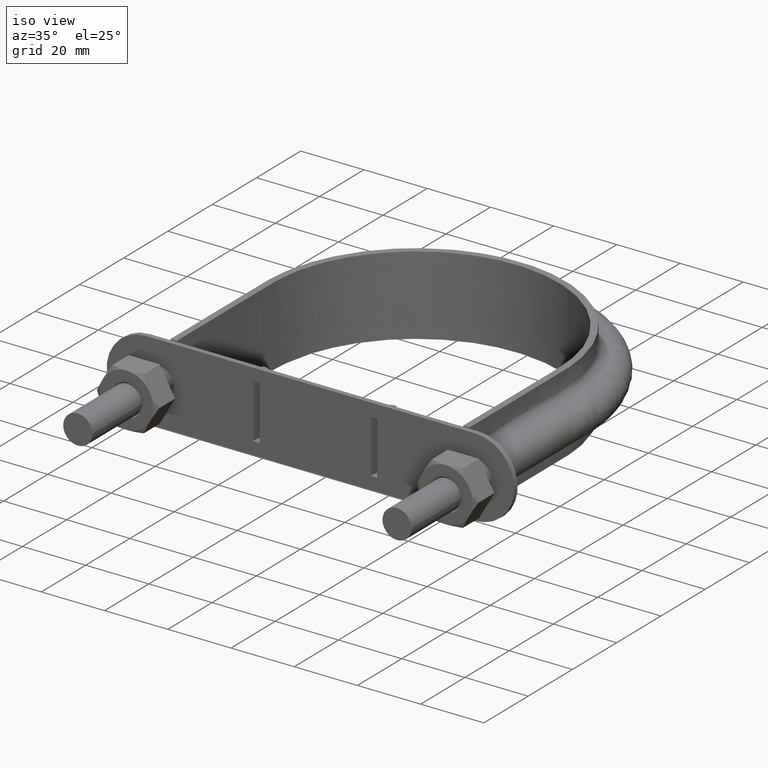
[diagram: clean part render]
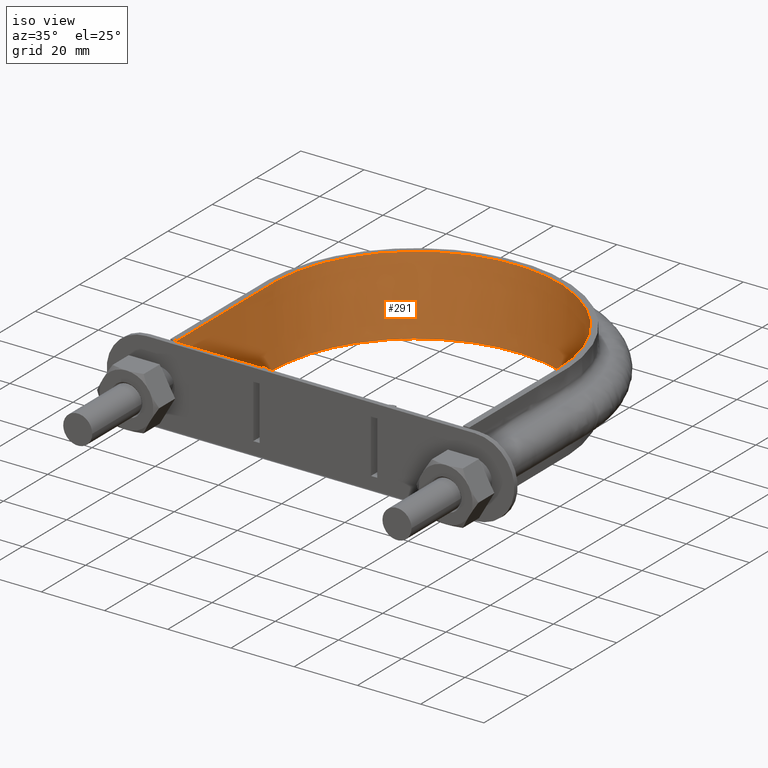
[diagram: same view with one face highlighted and labeled with its STEP entity id]
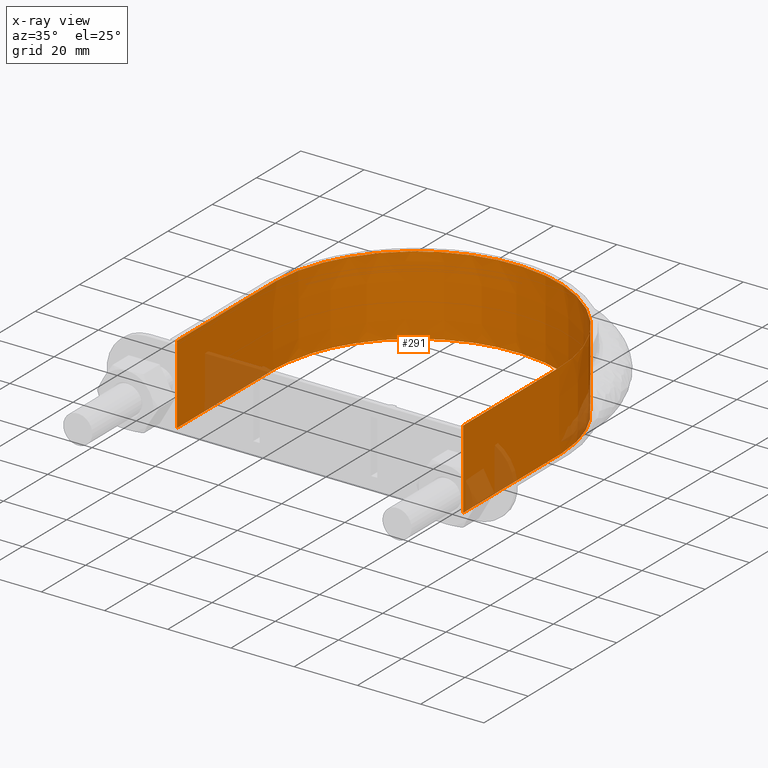
[diagram: x-ray of the same camera — body ghosted, the highlighted face saturated]
A machine part, iso view. The second image highlights one B-rep face of the part: STEP entity #291.
The next image is the same camera in x-ray: the body ghosted, the highlighted face saturated — about 9% of this face is hidden behind the body in this view.
In plain terms, the highlighted face is a SurfaceOfExtrusion surface.
Its self-contained STEP definition (entity closure, byte-faithful):
#291 = ADVANCED_FACE( '', ( #435 ), #436, .T. );
#435 = FACE_OUTER_BOUND( '', #847, .T. );
#436 = SURFACE_OF_LINEAR_EXTRUSION( '', #848, #849 );
#847 = EDGE_LOOP( '', ( #1841, #1842, #1843, #1844 ) );
#848 = B_SPLINE_CURVE_WITH_KNOTS( '', 3, ( #1845, #1846, #1847, #1848, #1849, #1850, #1851, #1852, #1853, #1854, #1855, #1856, #1857, #1858, #1859, #1860 ), .UNSPECIFIED., .F., .F., ( 4, 3, 1, 1, 1, 1, 1, 1, 3, 4 ), ( -8.93133047210300, -8.00000000000000, -7.00000000000000, -6.00000000000000, -5.00000000000000, -4.00000000000000, -3.00000000000000, -2.00000000000000, -1.00000000000000, -0.0686695278969956 ), .UNSPECIFIED. );
#849 = VECTOR( '', #1861, 1000.00000000000 );
#1841 = ORIENTED_EDGE( '', *, *, #2539, .T. );
#1842 = ORIENTED_EDGE( '', *, *, #2544, .T. );
#1843 = ORIENTED_EDGE( '', *, *, #2545, .F. );
#1844 = ORIENTED_EDGE( '', *, *, #2546, .T. );
#1845 = CARTESIAN_POINT( '', ( 45.3000000000000, 37.3000000000000, 12.5000100000910 ) );
#1846 = CARTESIAN_POINT( '', ( 45.3000000000000, 51.7666666666667, 12.5000100000910 ) );
#1847 = CARTESIAN_POINT( '', ( 45.3000000000000, 66.2333333333333, 12.5000100000910 ) );
#1848 = CARTESIAN_POINT( '', ( 45.3000000000000, 80.7000000000000, 12.5000100000910 ) );
#1849 = CARTESIAN_POINT( '', ( 45.3000000000000, 87.4617942068644, 12.5000100000910 ) );
#1850 = CARTESIAN_POINT( '', ( 42.2071641315033, 101.032157601825, 12.5000100000910 ) );
#1851 = CARTESIAN_POINT( '', ( 29.2082638356160, 117.324357375469, 12.5000100000910 ) );
#1852 = CARTESIAN_POINT( '', ( 10.4243086712368, 126.372209831110, 12.5000100000910 ) );
#1853 = CARTESIAN_POINT( '', ( -10.4243086712368, 126.372209831110, 12.5000100000910 ) );
#1854 = CARTESIAN_POINT( '', ( -29.2082638356159, 117.324357375469, 12.5000100000910 ) );
#1855 = CARTESIAN_POINT( '', ( -42.2071641315033, 101.032157601825, 12.5000100000910 ) );
#1856 = CARTESIAN_POINT( '', ( -45.3000000000000, 87.4617942068644, 12.5000100000910 ) );
#1857 = CARTESIAN_POINT( '', ( -45.3000000000000, 80.7000000000000, 12.5000100000910 ) );
#1858 = CARTESIAN_POINT( '', ( -45.3000000000000, 66.2333333333333, 12.5000100000910 ) );
#1859 = CARTESIAN_POINT( '', ( -45.3000000000000, 51.7666666666667, 12.5000100000910 ) );
#1860 = CARTESIAN_POINT( '', ( -45.3000000000000, 37.3000000000000, 12.5000100000910 ) );
#1861 = DIRECTION( '', ( 0.000000000000000, 0.000000000000000, -1.00000000000000 ) );
#2539 = EDGE_CURVE( '', #2793, #2794, #2795, .T. );
#2544 = EDGE_CURVE( '', #2794, #2803, #2804, .F. );
#2545 = EDGE_CURVE( '', #2805, #2803, #2806, .T. );
#2546 = EDGE_CURVE( '', #2805, #2793, #2807, .T. );
#2793 = VERTEX_POINT( '', #3223 );
#2794 = VERTEX_POINT( '', #3224 );
#2795 = LINE( '', #3225, #3226 );
#2803 = VERTEX_POINT( '', #3275 );
#2804 = B_SPLINE_CURVE_WITH_KNOTS( '', 3, ( #3276, #3277, #3278, #3279, #3280, #3281, #3282, #3283, #3284, #3285, #3286, #3287, #3288, #3289, #3290, #3291 ), .UNSPECIFIED., .F., .F., ( 4, 3, 1, 1, 1, 1, 1, 1, 3, 4 ), ( -8.93133047210300, -8.00000000000000, -7.00000000000000, -6.00000000000000, -5.00000000000000, -4.00000000000000, -3.00000000000000, -2.00000000000000, -1.00000000000000, -0.0686695278969956 ), .UNSPECIFIED. );
#2805 = VERTEX_POINT( '', #3292 );
#2806 = LINE( '', #3293, #3294 );
#2807 = B_SPLINE_CURVE_WITH_KNOTS( '', 3, ( #3295, #3296, #3297, #3298, #3299, #3300, #3301, #3302, #3303, #3304, #3305, #3306, #3307, #3308, #3309, #3310, #3311, #3312, #3313, #3314, #3315, #3316, #3317, #3318, #3319, #3320, #3321, #3322, #3323, #3324, #3325, #3326, #3327, #3328, #3329, #3330, #3331, #3332, #3333, #3334, #3335, #3336, #3337, #3338, #3339, #3340, #3341, #3342, #3343, #3344, #3345, #3346, #3347, #3348, #3349, #3350, #3351, #3352, #3353, #3354, #3355, #3356, #3357, #3358, #3359, #3360, #3361, #3362, #3363, #3364, #3365, #3366, #3367, #3368, #3369, #3370, #3371, #3372, #3373, #3374, #3375, #3376, #3377, #3378 ), .UNSPECIFIED., .F., .F., ( 4, 1, 2, 2, 2, 2, 2, 2, 2, 2, 2, 2, 2, 2, 2, 2, 2, 2, 2, 2, 2, 2, 2, 2, 2, 2, 2, 2, 2, 2, 2, 2, 2, 2, 2, 2, 2, 2, 2, 2, 2, 1, 4 ), ( 0.000000000000000, 0.0287543779946544, 0.0431315669919816, 0.0440301413043146, 0.0449287156166476, 0.0467258642413135, 0.0503201614906453, 0.0575087559893089, 0.0611030532386408, 0.0629002018633067, 0.0646973504879726, 0.0718859449866363, 0.0754802422359682, 0.0790745394853000, 0.0862631339839637, 0.0898574312332955, 0.0916545798579614, 0.0934517284826273, 0.100640322981291, 0.107828917479955, 0.111423214729286, 0.115017511978618, 0.122206106477282, 0.124003255101948, 0.125800403726614, 0.129394700975946, 0.136583295474609, 0.138380444099275, 0.140177592723941, 0.143771889973273, 0.150960484471937, 0.154554781721269, 0.158149078970600, 0.165337673469264, 0.168931970718596, 0.170729119343262, 0.172526267967928, 0.179714862466592, 0.183309159715923, 0.185106308340589, 0.186903456965255, 0.201280645962582, 0.230035023957236 ), .UNSPECIFIED. );
#3223 = CARTESIAN_POINT( '', ( -45.3000000000000, 37.3000000000000, 12.5000000000000 ) );
#3224 = CARTESIAN_POINT( '', ( -45.3000000000000, 37.3000000000000, -12.5000000000000 ) );
#3225 = CARTESIAN_POINT( '', ( -45.3000000000000, 37.3000000000000, 12.5000100000910 ) );
#3226 = VECTOR( '', #4055, 1000.00000000000 );
#3275 = CARTESIAN_POINT( '', ( 45.3000000000000, 37.3000000000000, -12.5000000000000 ) );
#3276 = CARTESIAN_POINT( '', ( 45.3000000000000, 37.3000000000000, -12.5000000000000 ) );
#3277 = CARTESIAN_POINT( '', ( 45.3000000000000, 51.7666666666667, -12.5000000000000 ) );
#3278 = CARTESIAN_POINT( '', ( 45.3000000000000, 66.2333333333333, -12.5000000000000 ) );
#3279 = CARTESIAN_POINT( '', ( 45.3000000000000, 80.7000000000000, -12.5000000000000 ) );
#3280 = CARTESIAN_POINT( '', ( 45.3000000000000, 87.4617942068644, -12.5000000000000 ) );
#3281 = CARTESIAN_POINT( '', ( 42.2071641315033, 101.032157601825, -12.5000000000000 ) );
#3282 = CARTESIAN_POINT( '', ( 29.2082638356160, 117.324357375469, -12.5000000000000 ) );
#3283 = CARTESIAN_POINT( '', ( 10.4243086712368, 126.372209831110, -12.5000000000000 ) );
#3284 = CARTESIAN_POINT( '', ( -10.4243086712368, 126.372209831110, -12.5000000000000 ) );
#3285 = CARTESIAN_POINT( '', ( -29.2082638356159, 117.324357375469, -12.5000000000000 ) );
#3286 = CARTESIAN_POINT( '', ( -42.2071641315033, 101.032157601825, -12.5000000000000 ) );
#3287 = CARTESIAN_POINT( '', ( -45.3000000000000, 87.4617942068644, -12.5000000000000 ) );
#3288 = CARTESIAN_POINT( '', ( -45.3000000000000, 80.7000000000000, -12.5000000000000 ) );
#3289 = CARTESIAN_POINT( '', ( -45.3000000000000, 66.2333333333333, -12.5000000000000 ) );
#3290 = CARTESIAN_POINT( '', ( -45.3000000000000, 51.7666666666667, -12.5000000000000 ) );
#3291 = CARTESIAN_POINT( '', ( -45.3000000000000, 37.3000000000000, -12.5000000000000 ) );
#3292 = CARTESIAN_POINT( '', ( 45.3000000000000, 37.3000000000000, 12.5000000000000 ) );
#3293 = CARTESIAN_POINT( '', ( 45.3000000000000, 37.3000000000000, 12.5000100000910 ) );
#3294 = VECTOR( '', #4058, 1000.00000000000 );
#3295 = CARTESIAN_POINT( '', ( 45.3000000000000, 37.3000000000000, 12.5000000000000 ) );
#3296 = CARTESIAN_POINT( '', ( 45.3000000000000, 46.8848205646283, 12.5000000000000 ) );
#3297 = CARTESIAN_POINT( '', ( 45.3000000000000, 61.2620514115707, 12.5000000000000 ) );
#3298 = CARTESIAN_POINT( '', ( 45.3000000000000, 75.6392822585131, 12.5000000000000 ) );
#3299 = CARTESIAN_POINT( '', ( 45.3000000000000, 80.7312181834719, 12.5000000000000 ) );
#3300 = CARTESIAN_POINT( '', ( 45.2997760120249, 81.0307432856749, 12.5000000000000 ) );
#3301 = CARTESIAN_POINT( '', ( 45.2912777717044, 81.6297740662809, 12.5000000000000 ) );
#3302 = CARTESIAN_POINT( '', ( 45.2840050595566, 81.9292821612152, 12.5000000000000 ) );
#3303 = CARTESIAN_POINT( '', ( 45.2531480099003, 82.8277846367912, 12.5000000000000 ) );
#3304 = CARTESIAN_POINT( '', ( 45.2204957104834, 83.4272000245196, 12.5000000000000 ) );
#3305 = CARTESIAN_POINT( '', ( 45.0866957945141, 85.2224949492727, 12.5000000000000 ) );
#3306 = CARTESIAN_POINT( '', ( 44.9504291017170, 86.4079063220154, 12.5000000000000 ) );
#3307 = CARTESIAN_POINT( '', ( 44.4061177465218, 89.9311689042301, 12.5000000000000 ) );
#3308 = CARTESIAN_POINT( '', ( 43.8636822485659, 92.2363211946235, 12.5000000000000 ) );
#3309 = CARTESIAN_POINT( '', ( 42.7815683609984, 95.6287299026633, 12.5000000000000 ) );
#3310 = CARTESIAN_POINT( '', ( 42.3758385758423, 96.7485776392014, 12.5000000000000 ) );
#3311 = CARTESIAN_POINT( '', ( 41.6971261299261, 98.4112887411979, 12.5000000000000 ) );
#3312 = CARTESIAN_POINT( '', ( 41.4587485176160, 98.9635224872954, 12.5000000000000 ) );
#3313 = CARTESIAN_POINT( '', ( 40.9623939009448, 100.052686028662, 12.5000000000000 ) );
#3314 = CARTESIAN_POINT( '', ( 40.7040140940422, 100.590633634307, 12.5000000000000 ) );
#3315 = CARTESIAN_POINT( '', ( 39.3618284958927, 103.247672872113, 12.5000000000000 ) );
#3316 = CARTESIAN_POINT( '', ( 38.1287732829048, 105.269715209024, 12.5000000000000 ) );
#3317 = CARTESIAN_POINT( '', ( 36.0483927303405, 108.152702706861, 12.5000000000000 ) );
#3318 = CARTESIAN_POINT( '', ( 35.3162279376427, 109.088530904417, 12.5000000000000 ) );
#3319 = CARTESIAN_POINT( '', ( 33.7729613787723, 110.908858607226, 12.5000000000000 ) );
#3320 = CARTESIAN_POINT( '', ( 32.9584983694079, 111.796352407073, 12.5000000000000 ) );
#3321 = CARTESIAN_POINT( '', ( 30.4343658146004, 114.337344556213, 12.5000000000000 ) );
#3322 = CARTESIAN_POINT( '', ( 28.6360692622386, 115.881493975360, 12.5000000000000 ) );
#3323 = CARTESIAN_POINT( '', ( 25.7668653719942, 117.974964438366, 12.5000000000000 ) );
#3324 = CARTESIAN_POINT( '', ( 24.7819445161320, 118.635801019642, 12.5000000000000 ) );
#3325 = CARTESIAN_POINT( '', ( 23.2616146962020, 119.571356100425, 12.5000000000000 ) );
#3326 = CARTESIAN_POINT( '', ( 22.7476691870376, 119.873910471946, 12.5000000000000 ) );
#3327 = CARTESIAN_POINT( '', ( 21.7052773821732, 120.460213200769, 12.5000000000000 ) );
#3328 = CARTESIAN_POINT( '', ( 21.1756556167052, 120.744537298346, 12.5000000000000 ) );
#3329 = CARTESIAN_POINT( '', ( 18.5103111801554, 122.108501344270, 12.5000000000000 ) );
#3330 = CARTESIAN_POINT( '', ( 16.3185331092019, 123.020394560135, 12.5000000000000 ) );
#3331 = CARTESIAN_POINT( '', ( 11.8189661583872, 124.494646423883, 12.5000000000000 ) );
#3332 = CARTESIAN_POINT( '', ( 9.51076198777607, 125.055753822214, 12.5000000000000 ) );
#3333 = CARTESIAN_POINT( '', ( 5.95662532797849, 125.620734661634, 12.5000000000000 ) );
#3334 = CARTESIAN_POINT( '', ( 4.76788785050944, 125.761147485507, 12.5000000000000 ) );
#3335 = CARTESIAN_POINT( '', ( 2.39647070391239, 125.947851083060, 12.5000000000000 ) );
#3336 = CARTESIAN_POINT( '', ( 1.21153117527847, 125.994499013257, 12.5000000000000 ) );
#3337 = CARTESIAN_POINT( '', ( -2.34101805316265, 125.996625356462, 12.5000000000000 ) );
#3338 = CARTESIAN_POINT( '', ( -4.70637779815014, 125.815464639074, 12.5000000000000 ) );
#3339 = CARTESIAN_POINT( '', ( -7.65915858277239, 125.351020241084, 12.5000000000000 ) );
#3340 = CARTESIAN_POINT( '', ( -8.25083455194675, 125.245862246466, 12.5000000000000 ) );
#3341 = CARTESIAN_POINT( '', ( -9.42653190172406, 125.012409776832, 12.5000000000000 ) );
#3342 = CARTESIAN_POINT( '', ( -10.0101476162837, 124.884250803394, 12.5000000000000 ) );
#3343 = CARTESIAN_POINT( '', ( -11.7484468334343, 124.465883377835, 12.5000000000000 ) );
#3344 = CARTESIAN_POINT( '', ( -12.8906527223970, 124.141974327520, 12.5000000000000 ) );
#3345 = CARTESIAN_POINT( '', ( -16.2689101217009, 123.039631660257, 12.5000000000000 ) );
#3346 = CARTESIAN_POINT( '', ( -18.4569925447983, 122.131639060066, 12.5000000000000 ) );
#3347 = CARTESIAN_POINT( '', ( -21.1113012403400, 120.778432115202, 12.5000000000000 ) );
#3348 = CARTESIAN_POINT( '', ( -21.6380918925235, 120.496795189040, 12.5000000000000 ) );
#3349 = CARTESIAN_POINT( '', ( -22.6833837807201, 119.911132577781, 12.5000000000000 ) );
#3350 = CARTESIAN_POINT( '', ( -23.2017061819433, 119.607128404409, 12.5000000000000 ) );
#3351 = CARTESIAN_POINT( '', ( -24.7303471350013, 118.669564342871, 12.5000000000000 ) );
#3352 = CARTESIAN_POINT( '', ( -25.7191011998733, 118.007938274698, 12.5000000000000 ) );
#3353 = CARTESIAN_POINT( '', ( -28.5955069273409, 115.914712609781, 12.5000000000000 ) );
#3354 = CARTESIAN_POINT( '', ( -30.3928386158800, 114.374206663575, 12.5000000000000 ) );
#3355 = CARTESIAN_POINT( '', ( -32.9098802473356, 111.847665641424, 12.5000000000000 ) );
#3356 = CARTESIAN_POINT( '', ( -33.7201063858692, 110.968144324298, 12.5000000000000 ) );
#3357 = CARTESIAN_POINT( '', ( -35.2745676507394, 109.140548074671, 12.5000000000000 ) );
#3358 = CARTESIAN_POINT( '', ( -36.0108033379543, 108.202093103808, 12.5000000000000 ) );
#3359 = CARTESIAN_POINT( '', ( -38.0999731742672, 105.314831254988, 12.5000000000000 ) );
#3360 = CARTESIAN_POINT( '', ( -39.3343184899538, 103.294697861215, 12.5000000000000 ) );
#3361 = CARTESIAN_POINT( '', ( -40.9440306770638, 100.119061107137, 12.5000000000000 ) );
#3362 = CARTESIAN_POINT( '', ( -41.4398476877742, 99.0360037648772, 12.5000000000000 ) );
#3363 = CARTESIAN_POINT( '', ( -42.1215319712501, 97.3741023919349, 12.5000000000000 ) );
#3364 = CARTESIAN_POINT( '', ( -42.3385970417914, 96.8132838052199, 12.5000000000000 ) );
#3365 = CARTESIAN_POINT( '', ( -42.7483267135285, 95.6890735338500, 12.5000000000000 ) );
#3366 = CARTESIAN_POINT( '', ( -42.9414928116361, 95.1245361143392, 12.5000000000000 ) );
#3367 = CARTESIAN_POINT( '', ( -43.8499727665168, 92.2899252705552, 12.5000000000000 ) );
#3368 = CARTESIAN_POINT( '', ( -44.3947073189256, 89.9843867139324, 12.5000000000000 ) );
#3369 = CARTESIAN_POINT( '', ( -44.9423619636433, 86.4700581320870, 12.5000000000000 ) );
#3370 = CARTESIAN_POINT( '', ( -45.0797192826280, 85.2892189421346, 12.5000000000000 ) );
#3371 = CARTESIAN_POINT( '', ( -45.2157289936545, 83.5034010003825, 12.5000000000000 ) );
#3372 = CARTESIAN_POINT( '', ( -45.2493799141445, 82.9055639113821, 12.5000000000000 ) );
#3373 = CARTESIAN_POINT( '', ( -45.2926573150340, 81.7054461976235, 12.5000000000000 ) );
#3374 = CARTESIAN_POINT( '', ( -45.3000000000000, 81.1053775573680, 12.5000000000000 ) );
#3375 = CARTESIAN_POINT( '', ( -45.3000000000000, 75.7047145708432, 12.5000000000000 ) );
#3376 = CARTESIAN_POINT( '', ( -45.3000000000000, 61.3029466067771, 12.5000000000000 ) );
#3377 = CARTESIAN_POINT( '', ( -45.3000000000000, 46.9011786427109, 12.5000000000000 ) );
#3378 = CARTESIAN_POINT( '', ( -45.3000000000000, 37.3000000000000, 12.5000000000000 ) );
#4055 = DIRECTION( '', ( 0.000000000000000, 0.000000000000000, -1.00000000000000 ) );
#4058 = DIRECTION( '', ( 0.000000000000000, 0.000000000000000, -1.00000000000000 ) );